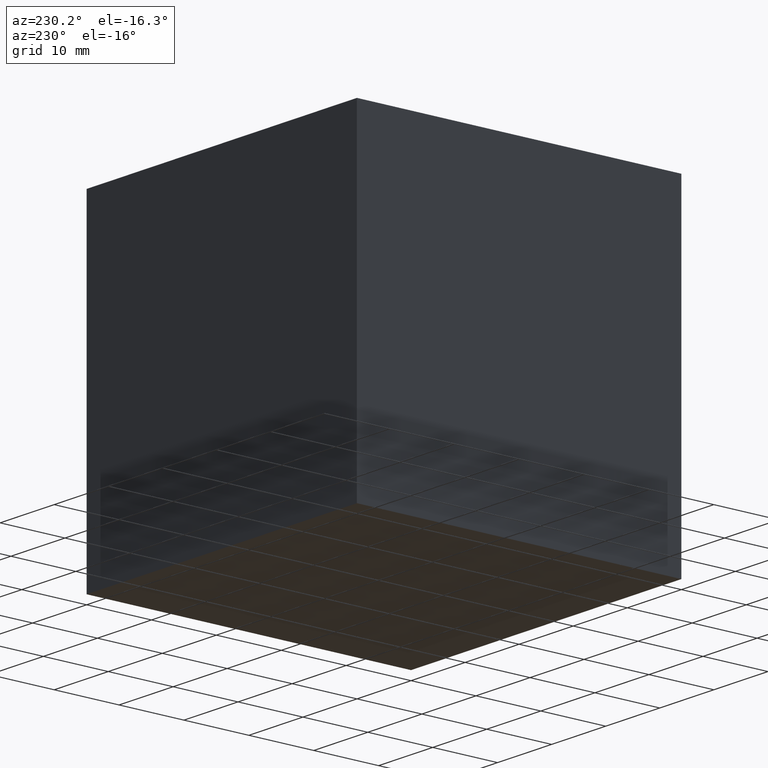
[diagram: clean part render]
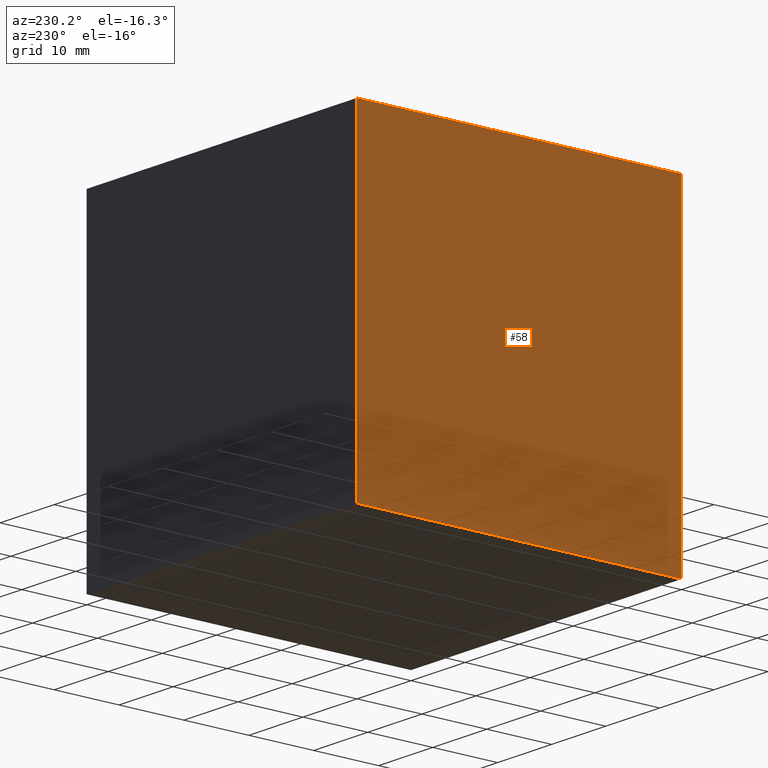
[diagram: same view with one face highlighted and labeled with its STEP entity id]
A machine part, auxiliary view. The second image highlights one B-rep face of the part: STEP entity #58.
In plain terms, the highlighted planar face has unit normal (-1, 0, 0).
Its self-contained STEP definition (entity closure, byte-faithful):
#8 = VECTOR ( 'NONE', #260, 1000.000000000000000 ) ;
#9 = VERTEX_POINT ( 'NONE', #67 ) ;
#11 = PLANE ( 'NONE',  #254 ) ;
#14 = VECTOR ( 'NONE', #236, 1000.000000000000000 ) ;
#25 = CARTESIAN_POINT ( 'NONE',  ( -50.00000000000000000, 50.00000000000000000, -49.99999999999999300 ) ) ;
#39 = VERTEX_POINT ( 'NONE', #243 ) ;
#58 = ADVANCED_FACE ( 'NONE', ( #199 ), #11, .T. ) ;
#60 = EDGE_LOOP ( 'NONE', ( #74, #288, #282, #240 ) ) ;
#67 = CARTESIAN_POINT ( 'NONE',  ( -50.00000000000000000, 50.00000000000000000, -49.99999999999999300 ) ) ;
#74 = ORIENTED_EDGE ( 'NONE', *, *, #170, .F. ) ;
#82 = EDGE_CURVE ( 'NONE', #9, #39, #227, .T. ) ;
#89 = VECTOR ( 'NONE', #300, 1000.000000000000000 ) ;
#95 = VERTEX_POINT ( 'NONE', #231 ) ;
#124 = DIRECTION ( 'NONE',  ( 0.0000000000000000000, -1.000000000000000000, 0.0000000000000000000 ) ) ;
#131 = LINE ( 'NONE', #251, #89 ) ;
#138 = DIRECTION ( 'NONE',  ( 0.0000000000000000000, 0.0000000000000000000, 1.000000000000000000 ) ) ;
#170 = EDGE_CURVE ( 'NONE', #297, #39, #255, .T. ) ;
#173 = EDGE_CURVE ( 'NONE', #95, #297, #284, .T. ) ;
#177 = CARTESIAN_POINT ( 'NONE',  ( -50.00000000000000000, 0.0000000000000000000, 0.0000000000000000000 ) ) ;
#192 = VECTOR ( 'NONE', #124, 1000.000000000000000 ) ;
#199 = FACE_OUTER_BOUND ( 'NONE', #60, .T. ) ;
#202 = EDGE_CURVE ( 'NONE', #95, #9, #131, .T. ) ;
#212 = CARTESIAN_POINT ( 'NONE',  ( -50.00000000000000000, -0.0000000000000000000, -49.99999999999999300 ) ) ;
#227 = LINE ( 'NONE', #252, #192 ) ;
#231 = CARTESIAN_POINT ( 'NONE',  ( -50.00000000000000000, 50.00000000000000000, 0.0000000000000000000 ) ) ;
#236 = DIRECTION ( 'NONE',  ( -0.0000000000000000000, -0.0000000000000000000, -1.000000000000000000 ) ) ;
#239 = CARTESIAN_POINT ( 'NONE',  ( -50.00000000000000000, 50.00000000000000000, 0.0000000000000000000 ) ) ;
#240 = ORIENTED_EDGE ( 'NONE', *, *, #82, .T. ) ;
#243 = CARTESIAN_POINT ( 'NONE',  ( -50.00000000000000000, -0.0000000000000000000, -49.99999999999999300 ) ) ;
#251 = CARTESIAN_POINT ( 'NONE',  ( -50.00000000000000000, 50.00000000000000000, -49.99999999999999300 ) ) ;
#252 = CARTESIAN_POINT ( 'NONE',  ( -50.00000000000000000, 50.00000000000000000, -49.99999999999999300 ) ) ;
#254 = AXIS2_PLACEMENT_3D ( 'NONE', #25, #274, #138 ) ;
#255 = LINE ( 'NONE', #212, #14 ) ;
#260 = DIRECTION ( 'NONE',  ( 0.0000000000000000000, -1.000000000000000000, 0.0000000000000000000 ) ) ;
#274 = DIRECTION ( 'NONE',  ( -1.000000000000000000, 0.0000000000000000000, 0.0000000000000000000 ) ) ;
#282 = ORIENTED_EDGE ( 'NONE', *, *, #202, .T. ) ;
#284 = LINE ( 'NONE', #239, #8 ) ;
#288 = ORIENTED_EDGE ( 'NONE', *, *, #173, .F. ) ;
#297 = VERTEX_POINT ( 'NONE', #177 ) ;
#300 = DIRECTION ( 'NONE',  ( -0.0000000000000000000, -0.0000000000000000000, -1.000000000000000000 ) ) ;